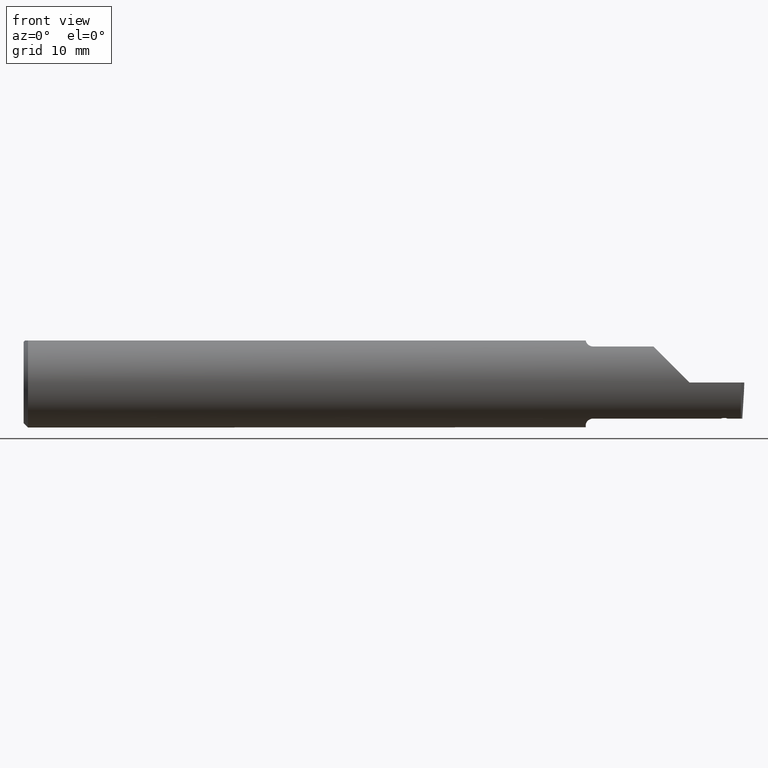
[diagram: clean part render]
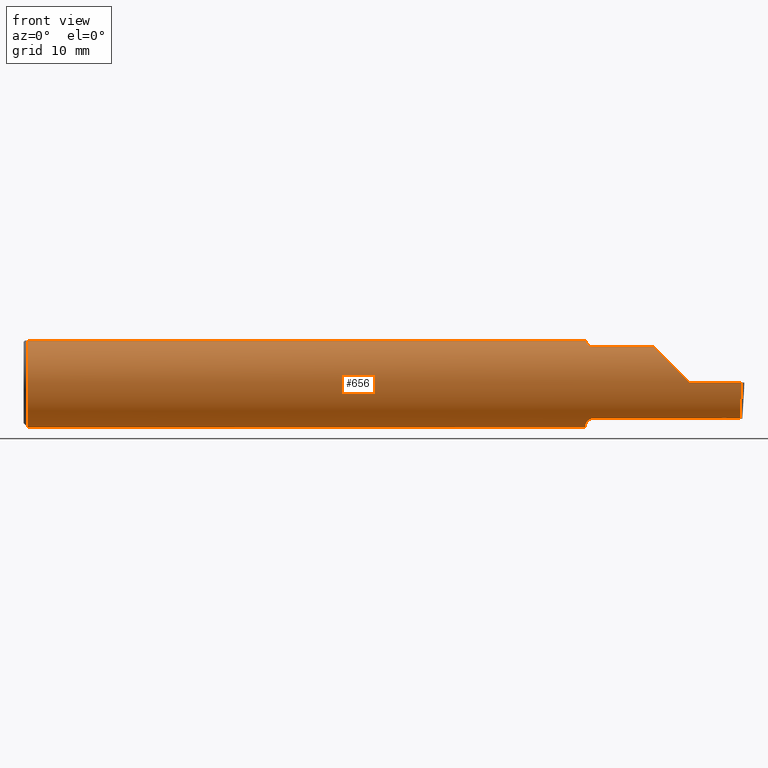
[diagram: same view with one face highlighted and labeled with its STEP entity id]
A machine part, front view. The second image highlights one B-rep face of the part: STEP entity #656.
In plain terms, the highlighted cylindrical surface (partial cylindrical patch) has radius 3.9649 mm, axis along (-1, -0, -0).
Its self-contained STEP definition (entity closure, byte-faithful):
#3 = DIRECTION ( 'NONE',  ( -1.000000000000000000, -0.000000000000000000, -0.000000000000000000 ) ) ;
#14 = VECTOR ( 'NONE', #58, 39.37007874015748143 ) ;
#16 = ORIENTED_EDGE ( 'NONE', *, *, #515, .F. ) ;
#18 = CARTESIAN_POINT ( 'NONE',  ( 1.970361275910303744, -0.09360841750841726594, -0.1249186702281521871 ) ) ;
#35 = LINE ( 'NONE', #365, #168 ) ;
#37 = CARTESIAN_POINT ( 'NONE',  ( 2.441446225260140324, -0.09360841750841732145, -0.1249186702281520484 ) ) ;
#39 = CARTESIAN_POINT ( 'NONE',  ( 2.435123761521545749, -0.09635998732901319974, -0.1228086431891069197 ) ) ;
#48 = VERTEX_POINT ( 'NONE', #37 ) ;
#57 = CARTESIAN_POINT ( 'NONE',  ( 1.962810002172223234, -0.08909999999984939689, 0.1281733201569305314 ) ) ;
#58 = DIRECTION ( 'NONE',  ( -1.000000000000000000, -0.000000000000000000, -0.000000000000000000 ) ) ;
#60 = ORIENTED_EDGE ( 'NONE', *, *, #290, .F. ) ;
#61 = CARTESIAN_POINT ( 'NONE',  ( 2.431669499259299982, -0.09619331978083883739, -0.1229392338903300408 ) ) ;
#63 = DIRECTION ( 'NONE',  ( 0.000000000000000000, 0.000000000000000000, -1.000000000000000000 ) ) ;
#69 = CARTESIAN_POINT ( 'NONE',  ( 1.960319203512566277, -0.08709887368156808696, 0.1295644080582772362 ) ) ;
#71 = VERTEX_POINT ( 'NONE', #127 ) ;
#74 = DIRECTION ( 'NONE',  ( -1.000000000000000000, -0.000000000000000000, -0.000000000000000000 ) ) ;
#80 = CARTESIAN_POINT ( 'NONE',  ( 1.958312875394041974, -0.08466547365232431066, -0.1311808389156052246 ) ) ;
#83 = ORIENTED_EDGE ( 'NONE', *, *, #401, .F. ) ;
#85 = DIRECTION ( 'NONE',  ( 1.000000000000000000, 0.000000000000000000, 0.000000000000000000 ) ) ;
#88 = CARTESIAN_POINT ( 'NONE',  ( 2.420383174987181363, -0.09430680229183241448, -0.1243953321693330866 ) ) ;
#89 = CARTESIAN_POINT ( 'NONE',  ( 2.487470999995594845, -0.1336908980339253650, -0.09488266708345007017 ) ) ;
#91 = CARTESIAN_POINT ( 'NONE',  ( 2.310000000000000053, -0.1560999999999999888, 2.326828918379970872E-17 ) ) ;
#93 = VERTEX_POINT ( 'NONE', #517 ) ;
#109 = ORIENTED_EDGE ( 'NONE', *, *, #1083, .T. ) ;
#116 = ORIENTED_EDGE ( 'NONE', *, *, #604, .F. ) ;
#122 = VECTOR ( 'NONE', #74, 39.37007874015748143 ) ;
#127 = CARTESIAN_POINT ( 'NONE',  ( 1.962810002172886925, -0.08909999999996044695, -0.1281733201567834268 ) ) ;
#129 = VECTOR ( 'NONE', #820, 39.37007874015748143 ) ;
#130 = CARTESIAN_POINT ( 'NONE',  ( 2.203500000000000014, -0.09360841750841747411, 0.1249186702281520206 ) ) ;
#134 = CARTESIAN_POINT ( 'NONE',  ( 1.962810002172223234, -0.08909999999984939689, 0.1281733201569305314 ) ) ;
#140 = CARTESIAN_POINT ( 'NONE',  ( 1.953785422859118937, -0.07659497035394380315, 0.1360571150960168119 ) ) ;
#144 = DIRECTION ( 'NONE',  ( -1.000000000000000000, -0.000000000000000000, -0.000000000000000000 ) ) ;
#150 = ORIENTED_EDGE ( 'NONE', *, *, #1032, .F. ) ;
#151 = DIRECTION ( 'NONE',  ( 0.000000000000000000, 0.000000000000000000, 1.000000000000000000 ) ) ;
#164 = CARTESIAN_POINT ( 'NONE',  ( 1.949999999999999067, -0.06152246774674054869, -0.1436327148497734685 ) ) ;
#168 = VECTOR ( 'NONE', #204, 39.37007874015748143 ) ;
#174 = CARTESIAN_POINT ( 'NONE',  ( 2.419921126144388257, -0.09360841750841733533, -0.1249186702281520484 ) ) ;
#175 = CARTESIAN_POINT ( 'NONE',  ( 1.962810002172886925, -0.08909999999996044695, -0.1281733201567834268 ) ) ;
#177 = VERTEX_POINT ( 'NONE', #213 ) ;
#181 = EDGE_CURVE ( 'NONE', #822, #202, #395, .T. ) ;
#183 = CARTESIAN_POINT ( 'NONE',  ( 2.435123761521545749, -0.09635998732901319974, -0.1228086431891069197 ) ) ;
#202 = VERTEX_POINT ( 'NONE', #382 ) ;
#204 = DIRECTION ( 'NONE',  ( -1.000000000000000000, -0.000000000000000000, -0.000000000000000000 ) ) ;
#207 = AXIS2_PLACEMENT_3D ( 'NONE', #547, #907, #63 ) ;
#209 = EDGE_CURVE ( 'NONE', #93, #969, #519, .T. ) ;
#213 = CARTESIAN_POINT ( 'NONE',  ( 2.488083711217045302, -0.09360841750841747411, -0.1249186702281520206 ) ) ;
#218 = LINE ( 'NONE', #580, #122 ) ;
#219 = EDGE_CURVE ( 'NONE', #577, #321, #821, .T. ) ;
#224 = CARTESIAN_POINT ( 'NONE',  ( 1.974999999999999867, -0.09360841750841747411, 0.1249186702281520206 ) ) ;
#229 = CARTESIAN_POINT ( 'NONE',  ( 3.749399456654646757E-32, -0.1560999999999999888, 3.061616997868384127E-16 ) ) ;
#233 = LINE ( 'NONE', #990, #129 ) ;
#235 = ORIENTED_EDGE ( 'NONE', *, *, #946, .F. ) ;
#240 = EDGE_CURVE ( 'NONE', #969, #666, #594, .T. ) ;
#263 = CARTESIAN_POINT ( 'NONE',  ( 2.488083711217045302, -0.09360841750841747411, -0.1249186702281520206 ) ) ;
#269 = AXIS2_PLACEMENT_3D ( 'NONE', #344, #3, #694 ) ;
#271 = CARTESIAN_POINT ( 'NONE',  ( 1.960315048287044171, -0.08709553534231924410, -0.1295667287130569112 ) ) ;
#277 = CARTESIAN_POINT ( 'NONE',  ( 1.974999999999999867, -0.09360841750841747411, 0.1249186702281520206 ) ) ;
#282 = CARTESIAN_POINT ( 'NONE',  ( 0.01499999999999999944, 0.000000000000000000, -0.1560999999999999888 ) ) ;
#288 = CARTESIAN_POINT ( 'NONE',  ( 1.974999999999999867, -0.09360841750841744635, -0.1249186702281520206 ) ) ;
#290 = EDGE_CURVE ( 'NONE', #177, #48, #218, .T. ) ;
#292 = CARTESIAN_POINT ( 'NONE',  ( 2.424761014381319413, -0.09585896340704673502, -0.1232001639219613837 ) ) ;
#294 = CARTESIAN_POINT ( 'NONE',  ( 1.950000000000000400, -0.06156212810510099109, 0.1436177747480845979 ) ) ;
#307 = CARTESIAN_POINT ( 'NONE',  ( 1.955056522840237898, -0.07943464720522720734, 0.1344128205797973930 ) ) ;
#315 = CARTESIAN_POINT ( 'NONE',  ( 0.01499999999999999944, 0.000000000000000000, 0.000000000000000000 ) ) ;
#318 = CARTESIAN_POINT ( 'NONE',  ( 2.441446225260140324, -0.09360841750841732145, -0.1249186702281520484 ) ) ;
#321 = VERTEX_POINT ( 'NONE', #91 ) ;
#342 = CARTESIAN_POINT ( 'NONE',  ( 1.955057722617700611, -0.07943655142502253907, -0.1344116409581927463 ) ) ;
#344 = CARTESIAN_POINT ( 'NONE',  ( 0.000000000000000000, 0.000000000000000000, 0.000000000000000000 ) ) ;
#346 = CARTESIAN_POINT ( 'NONE',  ( 2.421306795194256622, -0.09569118659003246485, -0.1233304780210805196 ) ) ;
#349 = FACE_OUTER_BOUND ( 'NONE', #495, .T. ) ;
#362 = CARTESIAN_POINT ( 'NONE',  ( 1.950000000000000178, -0.05502817059483720158, -0.1460791239054557156 ) ) ;
#365 = CARTESIAN_POINT ( 'NONE',  ( 0.000000000000000000, 0.05497272050753900657, 0.1460999999999999799 ) ) ;
#374 = ORIENTED_EDGE ( 'NONE', *, *, #219, .T. ) ;
#378 = CARTESIAN_POINT ( 'NONE',  ( 2.419921126144388257, -0.09360841750841733533, -0.1249186702281520484 ) ) ;
#379 = B_SPLINE_CURVE_WITH_KNOTS ( 'NONE', 3,
 ( #175, #271, #80, #342, #940, #602, #164, #671 ),
 .UNSPECIFIED., .F., .F.,
 ( 4, 2, 2, 4 ),
 ( 0.0003463854958010512543, 0.0006107451645894995760, 0.0008751048333779480604, 0.001403824170954845246 ),
 .UNSPECIFIED. ) ;
#381 = EDGE_CURVE ( 'NONE', #202, #1077, #35, .T. ) ;
#382 = CARTESIAN_POINT ( 'NONE',  ( 1.950000000000000178, 0.05497272050753900657, 0.1460999999999999799 ) ) ;
#392 = CARTESIAN_POINT ( 'NONE',  ( 2.429942371558145187, -0.09610989714720090393, -0.1230045076017446531 ) ) ;
#395 = CIRCLE ( 'NONE', #207, 0.1560999999999999888 ) ;
#401 = EDGE_CURVE ( 'NONE', #615, #93, #793, .T. ) ;
#421 = CARTESIAN_POINT ( 'NONE',  ( 2.259912409421232837, -0.1560999999999999888, 0.05008759057876772947 ) ) ;
#424 = DIRECTION ( 'NONE',  ( -1.000000000000000000, -0.000000000000000000, -0.000000000000000000 ) ) ;
#425 = CARTESIAN_POINT ( 'NONE',  ( 2.487862172267039984, -0.1560999999999999888, -0.05008759057876777804 ) ) ;
#435 = VERTEX_POINT ( 'NONE', #378 ) ;
#465 = DIRECTION ( 'NONE',  ( 1.000000000000000000, 0.000000000000000000, 0.000000000000000000 ) ) ;
#467 = CARTESIAN_POINT ( 'NONE',  ( 1.970364775055372997, -0.09360841750841719655, 0.1249186702281522149 ) ) ;
#475 = DIRECTION ( 'NONE',  ( 0.000000000000000000, 0.000000000000000000, 1.000000000000000000 ) ) ;
#479 = CARTESIAN_POINT ( 'NONE',  ( 2.432820917698954588, -0.09624893486858888958, -0.1228957180837702556 ) ) ;
#487 =( BOUNDED_CURVE ( )  B_SPLINE_CURVE ( 3, ( #263, #89, #425, #496 ),
 .UNSPECIFIED., .F., .F. ) 
 B_SPLINE_CURVE_WITH_KNOTS ( ( 4, 4 ),
 ( 5.999185379311402500, 6.926893589830566356 ),
 .UNSPECIFIED. ) 
 CURVE ( )  GEOMETRIC_REPRESENTATION_ITEM ( )  RATIONAL_B_SPLINE_CURVE ( ( 1.000000000000000000, 0.9295565493311498395, 0.9295565493311498395, 1.000000000000000000 ) ) 
 REPRESENTATION_ITEM ( '' )  );
#495 = EDGE_LOOP ( 'NONE', ( #60, #109, #374, #923, #16, #1029, #737, #83, #1064, #1081, #116, #908, #498, #150, #871, #235, #606, #574, #676 ) ) ;
#496 = CARTESIAN_POINT ( 'NONE',  ( 2.489174561457560220, -0.1560999999999999888, 0.000000000000000000 ) ) ;
#498 = ORIENTED_EDGE ( 'NONE', *, *, #181, .F. ) ;
#501 = CARTESIAN_POINT ( 'NONE',  ( 1.962810002172886925, -0.08909999999996044695, -0.1281733201567834268 ) ) ;
#504 = CARTESIAN_POINT ( 'NONE',  ( 2.215117332916550552, -0.1336908980339254205, 0.09488266708345004241 ) ) ;
#506 = CARTESIAN_POINT ( 'NONE',  ( 1.966077244708473337, -0.09172492714866078978, -0.1263485955677199346 ) ) ;
#513 = EDGE_CURVE ( 'NONE', #932, #831, #789, .T. ) ;
#515 = EDGE_CURVE ( 'NONE', #666, #785, #890, .T. ) ;
#517 = CARTESIAN_POINT ( 'NONE',  ( 1.950000000000000178, -0.05502817059483720158, 0.1460791239054557156 ) ) ;
#519 = B_SPLINE_CURVE_WITH_KNOTS ( 'NONE', 3,
 ( #654, #294, #633, #140, #307, #725, #69, #991 ),
 .UNSPECIFIED., .F., .F.,
 ( 4, 2, 2, 4 ),
 ( 2.042507625484096645E-06, 0.0005263182385139293217, 0.0007884561039581517534, 0.001050593969402373968 ),
 .UNSPECIFIED. ) ;
#527 = CARTESIAN_POINT ( 'NONE',  ( 2.185081329771848768, -0.09360841750841755737, 0.1249186702281519651 ) ) ;
#539 = DIRECTION ( 'NONE',  ( 1.000000000000000000, 0.000000000000000000, 0.000000000000000000 ) ) ;
#545 = CARTESIAN_POINT ( 'NONE',  ( 2.421306795194256622, -0.09569118659003246485, -0.1233304780210805196 ) ) ;
#547 = CARTESIAN_POINT ( 'NONE',  ( 1.950000000000000178, 0.000000000000000000, 0.000000000000000000 ) ) ;
#548 = AXIS2_PLACEMENT_3D ( 'NONE', #1078, #424, #151 ) ;
#552 = EDGE_CURVE ( 'NONE', #48, #932, #599, .T. ) ;
#571 = EDGE_CURVE ( 'NONE', #852, #71, #698, .T. ) ;
#574 = ORIENTED_EDGE ( 'NONE', *, *, #513, .F. ) ;
#577 = VERTEX_POINT ( 'NONE', #999 ) ;
#580 = CARTESIAN_POINT ( 'NONE',  ( 2.203500000000000014, -0.09360841750841747411, -0.1249186702281520206 ) ) ;
#582 = LINE ( 'NONE', #928, #939 ) ;
#590 = CYLINDRICAL_SURFACE ( 'NONE', #269, 0.1560999999999999888 ) ;
#593 = EDGE_CURVE ( 'NONE', #831, #435, #1004, .T. ) ;
#594 = B_SPLINE_CURVE_WITH_KNOTS ( 'NONE', 3,
 ( #134, #644, #467, #224 ),
 .UNSPECIFIED., .F., .F.,
 ( 4, 4 ),
 ( 0.001050593969402373968, 0.001393966686689396706 ),
 .UNSPECIFIED. ) ;
#599 = B_SPLINE_CURVE_WITH_KNOTS ( 'NONE', 3,
 ( #318, #864, #697, #828, #1039, #183 ),
 .UNSPECIFIED., .F., .F.,
 ( 4, 2, 4 ),
 ( 0.0003748131883793344747, 0.0004686708443886197588, 0.0005625285003979050430 ),
 .UNSPECIFIED. ) ;
#601 = CARTESIAN_POINT ( 'NONE',  ( 1.950000000000000178, -0.05497272050753899270, 0.1460999999999999799 ) ) ;
#602 = CARTESIAN_POINT ( 'NONE',  ( 1.950847904676645150, -0.06780574120017837658, -0.1407631332654325218 ) ) ;
#604 = EDGE_CURVE ( 'NONE', #1077, #810, #838, .T. ) ;
#606 = ORIENTED_EDGE ( 'NONE', *, *, #593, .F. ) ;
#608 = CARTESIAN_POINT ( 'NONE',  ( 2.420845058935790384, -0.09500106482492771953, -0.1238659382876434595 ) ) ;
#615 = VERTEX_POINT ( 'NONE', #601 ) ;
#621 = AXIS2_PLACEMENT_3D ( 'NONE', #315, #144, #475 ) ;
#630 = CARTESIAN_POINT ( 'NONE',  ( 2.423033902202140322, -0.09577514142391392593, -0.1232653380997783682 ) ) ;
#633 = CARTESIAN_POINT ( 'NONE',  ( 1.950844056398638005, -0.06777540567362916324, 0.1407770456887921240 ) ) ;
#639 = CARTESIAN_POINT ( 'NONE',  ( 2.421306795194256622, -0.09569118659003246485, -0.1233304780210805196 ) ) ;
#644 = CARTESIAN_POINT ( 'NONE',  ( 1.966072683443918612, -0.09172126259464265241, 0.1263511429915042950 ) ) ;
#654 = CARTESIAN_POINT ( 'NONE',  ( 1.950000000000000178, -0.05502817059483720158, 0.1460791239054557156 ) ) ;
#656 = ADVANCED_FACE ( 'NONE', ( #349 ), #590, .T. ) ;
#666 = VERTEX_POINT ( 'NONE', #277 ) ;
#671 = CARTESIAN_POINT ( 'NONE',  ( 1.950000000000000178, -0.05502817059483720158, -0.1460791239054557156 ) ) ;
#676 = ORIENTED_EDGE ( 'NONE', *, *, #552, .F. ) ;
#690 = CARTESIAN_POINT ( 'NONE',  ( 1.974999999999999867, -0.09360841750841744635, -0.1249186702281520206 ) ) ;
#694 = DIRECTION ( 'NONE',  ( 0.000000000000000000, 0.000000000000000000, 1.000000000000000000 ) ) ;
#696 = EDGE_CURVE ( 'NONE', #321, #785, #1025, .T. ) ;
#697 = CARTESIAN_POINT ( 'NONE',  ( 2.439799784067356647, -0.09510174548829630758, -0.1237872876813918138 ) ) ;
#698 = B_SPLINE_CURVE_WITH_KNOTS ( 'NONE', 3,
 ( #690, #18, #506, #501 ),
 .UNSPECIFIED., .F., .F.,
 ( 4, 4 ),
 ( 1.958690481313001990E-07, 0.0003463854958010512543 ),
 .UNSPECIFIED. ) ;
#716 = CARTESIAN_POINT ( 'NONE',  ( 2.428215249053885749, -0.09602634126842271578, -0.1230697486731468504 ) ) ;
#725 = CARTESIAN_POINT ( 'NONE',  ( 1.958314215045239060, -0.08466760255782143640, 0.1311795204669787829 ) ) ;
#737 = ORIENTED_EDGE ( 'NONE', *, *, #209, .F. ) ;
#771 = CARTESIAN_POINT ( 'NONE',  ( 2.310000000000000053, -0.1560999999999999888, 2.326828918379970872E-17 ) ) ;
#785 = VERTEX_POINT ( 'NONE', #527 ) ;
#789 = B_SPLINE_CURVE_WITH_KNOTS ( 'NONE', 3,
 ( #39, #800, #479, #61, #392, #716, #1056, #292, #630, #545 ),
 .UNSPECIFIED., .F., .F.,
 ( 4, 3, 3, 4 ),
 ( 4.172586958818122262E-17, 8.790293703400820630E-05, 0.0002197573459969845932, 0.0003516117582799113466 ),
 .UNSPECIFIED. ) ;
#793 = CIRCLE ( 'NONE', #883, 0.1560999999999999888 ) ;
#800 = CARTESIAN_POINT ( 'NONE',  ( 2.433972338452359274, -0.09630449073661445647, -0.1228521877703594445 ) ) ;
#803 = VERTEX_POINT ( 'NONE', #875 ) ;
#810 = VERTEX_POINT ( 'NONE', #282 ) ;
#820 = DIRECTION ( 'NONE',  ( -1.000000000000000000, -0.000000000000000000, -0.000000000000000000 ) ) ;
#821 = LINE ( 'NONE', #229, #14 ) ;
#822 = VERTEX_POINT ( 'NONE', #362 ) ;
#825 = CARTESIAN_POINT ( 'NONE',  ( 2.435123761521545749, -0.09635998732901319974, -0.1228086431891069197 ) ) ;
#828 = CARTESIAN_POINT ( 'NONE',  ( 2.437639618767903915, -0.09613185555315276187, -0.1229890276989948072 ) ) ;
#831 = VERTEX_POINT ( 'NONE', #639 ) ;
#838 = CIRCLE ( 'NONE', #548, 0.1560999999999999888 ) ;
#852 = VERTEX_POINT ( 'NONE', #288 ) ;
#864 = CARTESIAN_POINT ( 'NONE',  ( 2.440688518412397645, -0.09440069619437777004, -0.1243249723134973589 ) ) ;
#870 = EDGE_CURVE ( 'NONE', #810, #803, #1051, .T. ) ;
#871 = ORIENTED_EDGE ( 'NONE', *, *, #571, .F. ) ;
#875 = CARTESIAN_POINT ( 'NONE',  ( 0.01499999999999999944, -0.05497272050753900657, 0.1460999999999999799 ) ) ;
#883 = AXIS2_PLACEMENT_3D ( 'NONE', #1036, #539, #886 ) ;
#886 = DIRECTION ( 'NONE',  ( 0.000000000000000000, 0.000000000000000000, -1.000000000000000000 ) ) ;
#890 = LINE ( 'NONE', #130, #961 ) ;
#907 = DIRECTION ( 'NONE',  ( 1.000000000000000000, 0.000000000000000000, 0.000000000000000000 ) ) ;
#908 = ORIENTED_EDGE ( 'NONE', *, *, #381, .F. ) ;
#923 = ORIENTED_EDGE ( 'NONE', *, *, #696, .T. ) ;
#928 = CARTESIAN_POINT ( 'NONE',  ( 0.000000000000000000, -0.05497272050753900657, 0.1460999999999999799 ) ) ;
#932 = VERTEX_POINT ( 'NONE', #825 ) ;
#939 = VECTOR ( 'NONE', #85, 39.37007874015748143 ) ;
#940 = CARTESIAN_POINT ( 'NONE',  ( 1.953804698179400834, -0.07664326672408296182, -0.1360300949145557547 ) ) ;
#946 = EDGE_CURVE ( 'NONE', #435, #852, #233, .T. ) ;
#949 = CARTESIAN_POINT ( 'NONE',  ( 2.185081329771848768, -0.09360841750841755737, 0.1249186702281519651 ) ) ;
#961 = VECTOR ( 'NONE', #465, 39.37007874015748143 ) ;
#969 = VERTEX_POINT ( 'NONE', #57 ) ;
#990 = CARTESIAN_POINT ( 'NONE',  ( 2.203500000000000014, -0.09360841750841747411, -0.1249186702281520206 ) ) ;
#991 = CARTESIAN_POINT ( 'NONE',  ( 1.962810002172223234, -0.08909999999984939689, 0.1281733201569305314 ) ) ;
#999 = CARTESIAN_POINT ( 'NONE',  ( 2.489174561457560220, -0.1560999999999999888, 0.000000000000000000 ) ) ;
#1004 = B_SPLINE_CURVE_WITH_KNOTS ( 'NONE', 3,
 ( #346, #608, #88, #174 ),
 .UNSPECIFIED., .F., .F.,
 ( 4, 4 ),
 ( 8.938324207816181853E-15, 7.521287922134013986E-05 ),
 .UNSPECIFIED. ) ;
#1010 = CARTESIAN_POINT ( 'NONE',  ( 0.01499999999999999771, 0.05497272050753900657, 0.1460999999999999799 ) ) ;
#1025 =( BOUNDED_CURVE ( )  B_SPLINE_CURVE ( 3, ( #771, #421, #504, #949 ),
 .UNSPECIFIED., .F., .T. ) 
 B_SPLINE_CURVE_WITH_KNOTS ( ( 4, 4 ),
 ( 4.712388980384689674, 5.640097190903853530 ),
 .UNSPECIFIED. ) 
 CURVE ( )  GEOMETRIC_REPRESENTATION_ITEM ( )  RATIONAL_B_SPLINE_CURVE ( ( 1.000000000000000000, 0.9295565493311498395, 0.9295565493311498395, 1.000000000000000000 ) ) 
 REPRESENTATION_ITEM ( '' )  );
#1029 = ORIENTED_EDGE ( 'NONE', *, *, #240, .F. ) ;
#1032 = EDGE_CURVE ( 'NONE', #71, #822, #379, .T. ) ;
#1036 = CARTESIAN_POINT ( 'NONE',  ( 1.950000000000000178, 0.000000000000000000, 0.000000000000000000 ) ) ;
#1039 = CARTESIAN_POINT ( 'NONE',  ( 2.436392632326094709, -0.09642114456970450609, -0.1227606570638350020 ) ) ;
#1051 = CIRCLE ( 'NONE', #621, 0.1560999999999999888 ) ;
#1056 = CARTESIAN_POINT ( 'NONE',  ( 2.426488131739345633, -0.09594265233878830623, -0.1231349562967331973 ) ) ;
#1064 = ORIENTED_EDGE ( 'NONE', *, *, #1065, .F. ) ;
#1065 = EDGE_CURVE ( 'NONE', #803, #615, #582, .T. ) ;
#1077 = VERTEX_POINT ( 'NONE', #1010 ) ;
#1078 = CARTESIAN_POINT ( 'NONE',  ( 0.01499999999999999944, 0.000000000000000000, 0.000000000000000000 ) ) ;
#1081 = ORIENTED_EDGE ( 'NONE', *, *, #870, .F. ) ;
#1083 = EDGE_CURVE ( 'NONE', #177, #577, #487, .T. ) ;